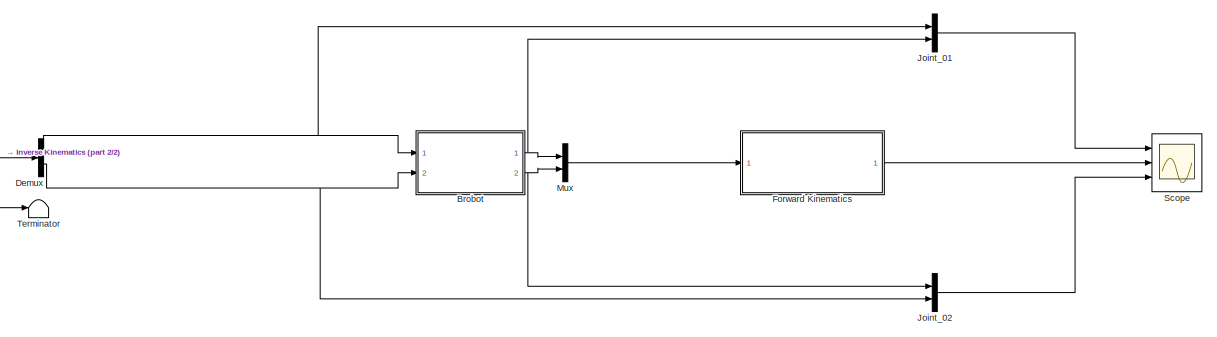
[diagram: root canvas - part 1/2, right side, full height]
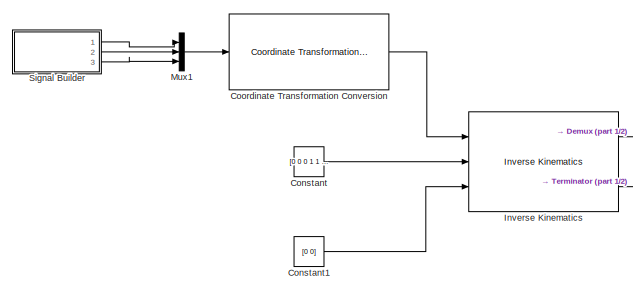
[diagram: root canvas - part 2/2, left side, full height]
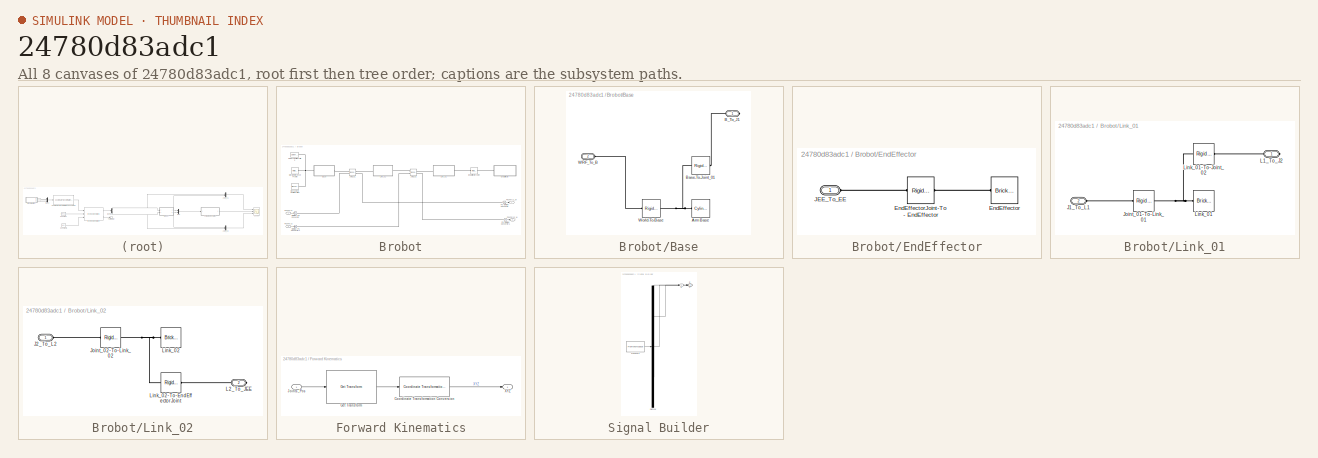
[diagram: thumbnail index - all 8 canvases of the model, root first then tree order]
MODEL slx_24780d83adc1
KIND model
CONFIG AbsTol = auto
CONFIG EnableMultiTasking = off
CONFIG FixedStep = auto
CONFIG MaxStep = auto
CONFIG MinStep = auto
CONFIG RelTol = 1e-3
CONFIG SampleTimeConstraint = Unconstrained
CONFIG SolverName = VariableStepAuto
CONFIG StartTime = 0.0
CONFIG StopTime = 10.0
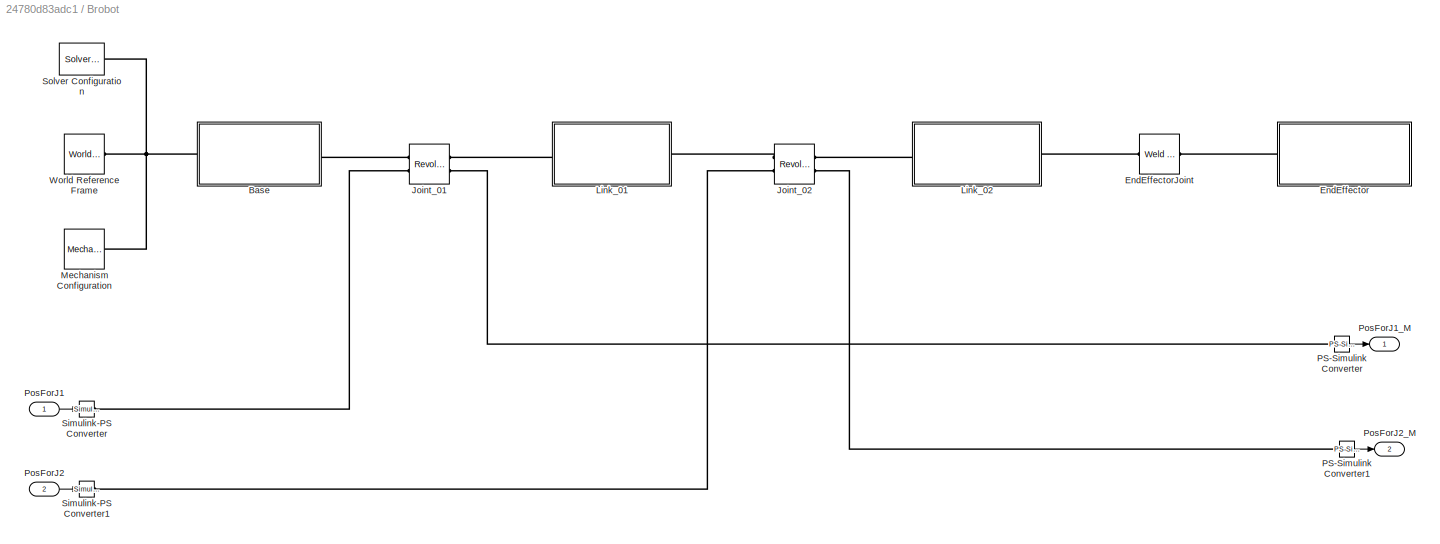
BLOCK [SubSystem] Brobot
  Ports = [2, 2]
  RequestExecContextInheritance = off
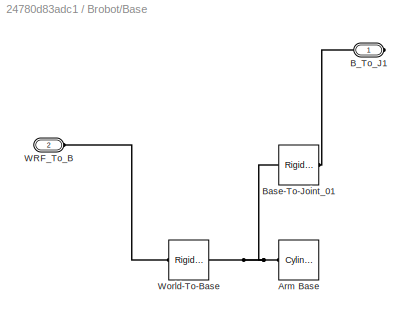
BLOCK [SubSystem] Brobot/Base
  Ports = [0, 0, 0, 0, 0, 1, 1]
  RequestExecContextInheritance = off
BLOCK [Reference] Brobot/Base/Arm Base  REF=sm_lib/Body Elements/Cylindrical Solid
  Ports = [0, 0, 0, 0, 0, 0, 1]
  SourceBlock = sm_lib/Body Elements/Cylindrical Solid
  SourceProductBaseCode = MS
  SourceType = Cylindrical Solid
BLOCK [PMIOPort] Brobot/Base/B_To_J1
  Side = Right
BLOCK [Reference] Brobot/Base/Base-To-Joint_01  REF=sm_lib/Frames and
Transforms/Rigid
Transform
  Ports = [0, 0, 0, 0, 0, 1, 1]
  SourceBlock = sm_lib/Frames and\nTransforms/Rigid\nTransform
  SourceProductBaseCode = MS
  SourceType = Rigid\nTransform
BLOCK [PMIOPort] Brobot/Base/WRF_To_B
  Port = 2
  Side = Left
BLOCK [Reference] Brobot/Base/World-To-Base  REF=sm_lib/Frames and
Transforms/Rigid
Transform
  Ports = [0, 0, 0, 0, 0, 1, 1]
  SourceBlock = sm_lib/Frames and\nTransforms/Rigid\nTransform
  SourceProductBaseCode = MS
  SourceType = Rigid\nTransform
BLOCK [SubSystem] Brobot/EndEffector
  Ports = [0, 0, 0, 0, 0, 1]
  RequestExecContextInheritance = off
BLOCK [Reference] Brobot/EndEffector/EndEffector  REF=sm_lib/Body Elements/Brick Solid
  Ports = [0, 0, 0, 0, 0, 0, 1]
  SourceBlock = sm_lib/Body Elements/Brick Solid
  SourceProductBaseCode = MS
  SourceType = Brick Solid
BLOCK [Reference] Brobot/EndEffector/EndEffectorJoint-To- EndEffector  REF=sm_lib/Frames and
Transforms/Rigid
Transform
  Ports = [0, 0, 0, 0, 0, 1, 1]
  SourceBlock = sm_lib/Frames and\nTransforms/Rigid\nTransform
  SourceProductBaseCode = MS
  SourceType = Rigid\nTransform
BLOCK [PMIOPort] Brobot/EndEffector/JEE_To_EE
  Side = Left
BLOCK [Reference] Brobot/EndEffectorJoint  REF=sm_lib/Joints/Weld Joint
  Ports = [0, 0, 0, 0, 0, 1, 1]
  SourceBlock = sm_lib/Joints/Weld Joint
  SourceProductBaseCode = MS
  SourceType = Weld Joint
BLOCK [Reference] Brobot/Joint_01  REF=sm_lib/Joints/Revolute Joint
  Ports = [0, 0, 0, 0, 0, 2, 2]
  SourceBlock = sm_lib/Joints/Revolute Joint
  SourceProductBaseCode = MS
  SourceType = Revolute Joint
BLOCK [Reference] Brobot/Joint_02  REF=sm_lib/Joints/Revolute Joint
  Ports = [0, 0, 0, 0, 0, 2, 2]
  SourceBlock = sm_lib/Joints/Revolute Joint
  SourceProductBaseCode = MS
  SourceType = Revolute Joint
BLOCK [SubSystem] Brobot/Link_01
  Ports = [0, 0, 0, 0, 0, 1, 1]
  RequestExecContextInheritance = off
BLOCK [PMIOPort] Brobot/Link_01/J1_To_L1
  Port = 2
  Side = Left
BLOCK [Reference] Brobot/Link_01/Joint_01-To-Link_01  REF=sm_lib/Frames and
Transforms/Rigid
Transform
  Ports = [0, 0, 0, 0, 0, 1, 1]
  SourceBlock = sm_lib/Frames and\nTransforms/Rigid\nTransform
  SourceProductBaseCode = MS
  SourceType = Rigid\nTransform
BLOCK [PMIOPort] Brobot/Link_01/L1_To_J2
  Side = Right
BLOCK [Reference] Brobot/Link_01/Link_01  REF=sm_lib/Body Elements/Brick Solid
  Ports = [0, 0, 0, 0, 0, 0, 1]
  SourceBlock = sm_lib/Body Elements/Brick Solid
  SourceProductBaseCode = MS
  SourceType = Brick Solid
BLOCK [Reference] Brobot/Link_01/Link_01-To-Joint_02  REF=sm_lib/Frames and
Transforms/Rigid
Transform
  Ports = [0, 0, 0, 0, 0, 1, 1]
  SourceBlock = sm_lib/Frames and\nTransforms/Rigid\nTransform
  SourceProductBaseCode = MS
  SourceType = Rigid\nTransform
BLOCK [SubSystem] Brobot/Link_02
  Ports = [0, 0, 0, 0, 0, 1, 1]
  RequestExecContextInheritance = off
BLOCK [PMIOPort] Brobot/Link_02/J2_To_L2
  Side = Left
BLOCK [Reference] Brobot/Link_02/Joint_02-To-Link_02  REF=sm_lib/Frames and
Transforms/Rigid
Transform
  Ports = [0, 0, 0, 0, 0, 1, 1]
  SourceBlock = sm_lib/Frames and\nTransforms/Rigid\nTransform
  SourceProductBaseCode = MS
  SourceType = Rigid\nTransform
BLOCK [PMIOPort] Brobot/Link_02/L2_To_JEE
  Port = 2
  Side = Right
BLOCK [Reference] Brobot/Link_02/Link_02  REF=sm_lib/Body Elements/Brick Solid
  Ports = [0, 0, 0, 0, 0, 0, 1]
  SourceBlock = sm_lib/Body Elements/Brick Solid
  SourceProductBaseCode = MS
  SourceType = Brick Solid
BLOCK [Reference] Brobot/Link_02/Link_02-To-EndEffectorJoint  REF=sm_lib/Frames and
Transforms/Rigid
Transform
  Ports = [0, 0, 0, 0, 0, 1, 1]
  SourceBlock = sm_lib/Frames and\nTransforms/Rigid\nTransform
  SourceProductBaseCode = MS
  SourceType = Rigid\nTransform
BLOCK [Reference] Brobot/Mechanism Configuration  REF=sm_lib/Utilities/Mechanism
Configuration
  Ports = [0, 0, 0, 0, 0, 0, 1]
  SourceBlock = sm_lib/Utilities/Mechanism\nConfiguration
  SourceProductBaseCode = MS
  SourceType = Mechanism\nConfiguration
BLOCK [Reference] Brobot/PS-Simulink Converter  REF=nesl_utility/PS-Simulink
Converter
  Ports = [0, 1, 0, 0, 0, 1]
  SourceBlock = nesl_utility/PS-Simulink\nConverter
  SourceProductBaseCode = PW,SS
  SourceType = PS-Simulink\nConverter
BLOCK [Reference] Brobot/PS-Simulink Converter1  REF=nesl_utility/PS-Simulink
Converter
  Ports = [0, 1, 0, 0, 0, 1]
  SourceBlock = nesl_utility/PS-Simulink\nConverter
  SourceProductBaseCode = PW,SS
  SourceType = PS-Simulink\nConverter
BLOCK [Inport] Brobot/PosForJ1
BLOCK [Outport] Brobot/PosForJ1_M
BLOCK [Inport] Brobot/PosForJ2
  Port = 2
BLOCK [Outport] Brobot/PosForJ2_M
  Port = 2
BLOCK [Reference] Brobot/Simulink-PS Converter  REF=nesl_utility/Simulink-PS
Converter
  Ports = [1, 0, 0, 0, 0, 0, 1]
  SourceBlock = nesl_utility/Simulink-PS\nConverter
  SourceProductBaseCode = PW,SS
  SourceType = Simulink-PS\nConverter
BLOCK [Reference] Brobot/Simulink-PS Converter1  REF=nesl_utility/Simulink-PS
Converter
  Ports = [1, 0, 0, 0, 0, 0, 1]
  SourceBlock = nesl_utility/Simulink-PS\nConverter
  SourceProductBaseCode = PW,SS
  SourceType = Simulink-PS\nConverter
BLOCK [Reference] Brobot/Solver Configuration  REF=nesl_utility/Solver
Configuration
  Ports = [0, 0, 0, 0, 0, 0, 1]
  SourceBlock = nesl_utility/Solver\nConfiguration
  SourceProductBaseCode = PW,SS
  SourceType = Solver\nConfiguration
BLOCK [Reference] Brobot/World Reference Frame  REF=sm_lib/Frames and
Transforms/World Frame
  Ports = [0, 0, 0, 0, 0, 0, 1]
  SourceBlock = sm_lib/Frames and\nTransforms/World Frame
  SourceProductBaseCode = MS
  SourceType = World Frame
BLOCK [Constant] Constant
  Value = [0 0 0 1 1 1]
BLOCK [Constant] Constant1
  Value = [0 0]
BLOCK [Reference] Coordinate Transformation Conversion  REF=robotcorelib/Coordinate Transformation Conversion
  Ports = [1, 1]
  SourceBlock = robotcorelib/Coordinate Transformation Conversion
  SourceProductBaseCode = NV,RO,RR,UV
  SourceType = robotics.slcore.internal.block.CoordinateTransformationConversion
BLOCK [Demux] Demux
  Outputs = 2
  Ports = [1, 2]
BLOCK [SubSystem] Forward Kinematics
  Ports = [1, 1]
  RequestExecContextInheritance = off
BLOCK [Reference] Forward Kinematics/Coordinate Transformation Conversion  REF=robotcorelib/Coordinate Transformation Conversion
  Ports = [1, 1]
  SourceBlock = robotcorelib/Coordinate Transformation Conversion
  SourceProductBaseCode = NV,RO,RR,UV
  SourceType = robotics.slcore.internal.block.CoordinateTransformationConversion
BLOCK [Reference] Forward Kinematics/Get Transform  REF=robotmaniplib/Get Transform
  Ports = [1, 1]
  SourceBlock = robotmaniplib/Get Transform
  SourceProductBaseCode = RO
  SourceType = Get Transform
BLOCK [Inport] Forward Kinematics/Joints_Pos
BLOCK [Outport] Forward Kinematics/XYZ
BLOCK [Reference] Inverse Kinematics  REF=robotmaniplib/Inverse Kinematics
  Ports = [3, 2]
  SourceBlock = robotmaniplib/Inverse Kinematics
  SourceProductBaseCode = RO
  SourceType = Inverse Kinematics
BLOCK [Mux] Joint_01
  DisplayOption = bar
  Inputs = 2
  Ports = [2, 1]
BLOCK [Mux] Joint_02
  DisplayOption = bar
  Inputs = 2
  Ports = [2, 1]
BLOCK [Mux] Mux
  DisplayOption = bar
  Inputs = 2
  Ports = [2, 1]
BLOCK [Mux] Mux1
  DisplayOption = bar
  Inputs = 3
  Ports = [3, 1]
BLOCK [Scope] Scope
  Floating = off
  NumInputPorts = 3
  Ports = [3]
  ScopeSpecificationString = Simulink.scopes.TimeScopeBlockCfg('CurrentConfiguration', extmgr.ConfigurationSet(extmgr.Configuration('Core','General UI',true),extmgr.Configuration('Core','Source UI',true),extmgr.Configuration('Sources','WiredSimulink',true),extmgr.Configuration('Visuals','Time Domain',true,'SerializedDisplays',{struct('MinYLimReal','-10','MaxYLimReal','10','YLabelReal','','MinYLimMag','0','MaxYLimMag','10','Le...<+2732ch>
BLOCK [SubSystem] Signal Builder
  ClipboardFcn = sigbuilder_block('clipboard');
  CloseFcn = sigbuilder_block('close');
  ContinueFcn = sigbuilder_block('continue');
  CopyFcn = sigbuilder_block('copy');
  DeleteFcn = sigbuilder_block('delete');
  LoadFcn = sigbuilder_block('load');
  MaskHideContents = on
  ModelCloseFcn = sigbuilder_block('modelClose');
  NameChangeFcn = sigbuilder_block('namechange');
  OpenFcn = sigbuilder_block('open',[102.75 74.25 544.5 355.5 ]);
  PauseFcn = sigbuilder_block('pause');
  Ports = [0, 3]
  PreSaveFcn = sigbuilder_block('preSave');
  RequestExecContextInheritance = off
  StartFcn = sigbuilder_block('start');
  StopFcn = sigbuilder_block('stop');
  Tag = STV Subsys
BLOCK [Demux] Signal Builder/Demux
  DisplayOption = none
  Outputs = 3
  Ports = [1, 3]
  Tag = STV Demux
BLOCK [FromWorkspace] Signal Builder/FromWs
  Tag = STV FromWs
  VariableName = tuvar
BLOCK [Outport] Signal Builder/X
  Tag = STV Outport
BLOCK [Outport] Signal Builder/Y
  Port = 2
  Tag = STV Outport
BLOCK [Outport] Signal Builder/Z
  Port = 3
  Tag = STV Outport
BLOCK [Terminator] Terminator
LINE Brobot/PS-Simulink Converter1:1 -> Brobot/PosForJ2_M:1
LINE Brobot/PS-Simulink Converter:1 -> Brobot/PosForJ1_M:1
LINE Brobot/PosForJ1:1 -> Brobot/Simulink-PS Converter:1
LINE Brobot/PosForJ2:1 -> Brobot/Simulink-PS Converter1:1
NET Brobot:1 -> Joint_01:2, Mux:1
NET Brobot:2 -> Joint_02:1, Mux:2
LINE Constant1:1 -> Inverse Kinematics:3
LINE Constant:1 -> Inverse Kinematics:2
LINE Coordinate Transformation Conversion:1 -> Inverse Kinematics:1
NET Demux:1 -> Brobot:1, Joint_01:1
NET Demux:2 -> Brobot:2, Joint_02:2
LINE Forward Kinematics/Coordinate Transformation Conversion:1 -> Forward Kinematics/XYZ:1
LINE Forward Kinematics/Get Transform:1 -> Forward Kinematics/Coordinate Transformation Conversion:1
LINE Forward Kinematics/Joints_Pos:1 -> Forward Kinematics/Get Transform:1
LINE Forward Kinematics:1 -> Scope:2
LINE Inverse Kinematics:1 -> Demux:1
LINE Inverse Kinematics:2 -> Terminator:1
LINE Joint_01:1 -> Scope:1
LINE Joint_02:1 -> Scope:3
LINE Mux1:1 -> Coordinate Transformation Conversion:1
LINE Mux:1 -> Forward Kinematics:1
LINE Signal Builder:1 -> Mux1:1
LINE Signal Builder:2 -> Mux1:2
LINE Signal Builder:3 -> Mux1:3
PNET net1: Brobot/Base/Arm Base:RConn1 -- Brobot/Base/Base-To-Joint_01:LConn1 -- Brobot/Base/World-To-Base:RConn1
PLINE Brobot/Base/B_To_J1:RConn1 -- Brobot/Base/Base-To-Joint_01:RConn1
PLINE Brobot/Base/WRF_To_B:RConn1 -- Brobot/Base/World-To-Base:LConn1
PNET net2: Brobot/Base:LConn1 -- Brobot/Mechanism Configuration:RConn1 -- Brobot/Solver Configuration:RConn1 -- Brobot/World Reference Frame:RConn1
PLINE Brobot/Base:RConn1 -- Brobot/Joint_01:LConn1
PLINE Brobot/EndEffector/EndEffector:RConn1 -- Brobot/EndEffector/EndEffectorJoint-To- EndEffector:RConn1
PLINE Brobot/EndEffector/EndEffectorJoint-To- EndEffector:LConn1 -- Brobot/EndEffector/JEE_To_EE:RConn1
PLINE Brobot/EndEffector:LConn1 -- Brobot/EndEffectorJoint:RConn1
PLINE Brobot/EndEffectorJoint:LConn1 -- Brobot/Link_02:RConn1
PLINE Brobot/Joint_01:LConn2 -- Brobot/Simulink-PS Converter:RConn1
PLINE Brobot/Joint_01:RConn1 -- Brobot/Link_01:LConn1
PLINE Brobot/Joint_01:RConn2 -- Brobot/PS-Simulink Converter:LConn1
PLINE Brobot/Joint_02:LConn1 -- Brobot/Link_01:RConn1
PLINE Brobot/Joint_02:LConn2 -- Brobot/Simulink-PS Converter1:RConn1
PLINE Brobot/Joint_02:RConn1 -- Brobot/Link_02:LConn1
PLINE Brobot/Joint_02:RConn2 -- Brobot/PS-Simulink Converter1:LConn1
PLINE Brobot/Link_01/J1_To_L1:RConn1 -- Brobot/Link_01/Joint_01-To-Link_01:LConn1
PNET net3: Brobot/Link_01/Joint_01-To-Link_01:RConn1 -- Brobot/Link_01/Link_01-To-Joint_02:LConn1 -- Brobot/Link_01/Link_01:RConn1
PLINE Brobot/Link_01/L1_To_J2:RConn1 -- Brobot/Link_01/Link_01-To-Joint_02:RConn1
PLINE Brobot/Link_02/J2_To_L2:RConn1 -- Brobot/Link_02/Joint_02-To-Link_02:LConn1
PNET net4: Brobot/Link_02/Joint_02-To-Link_02:RConn1 -- Brobot/Link_02/Link_02-To-EndEffectorJoint:LConn1 -- Brobot/Link_02/Link_02:RConn1
PLINE Brobot/Link_02/L2_To_JEE:RConn1 -- Brobot/Link_02/Link_02-To-EndEffectorJoint:RConn1
note: NET lines group one-source signal fan-out (src -> all destinations, sorted); 1:1 wires keep LINE; PNET lines group multi-terminal physical nets as a canonical sorted terminal list (undirected conserving connections); 2-terminal nets keep the pairwise PLINE form
